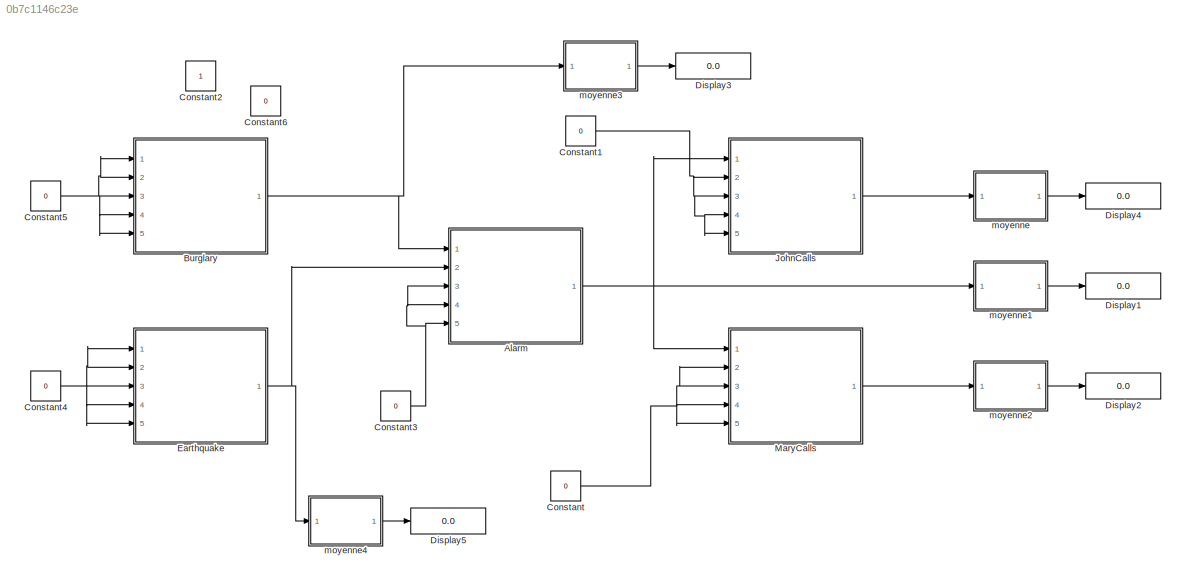
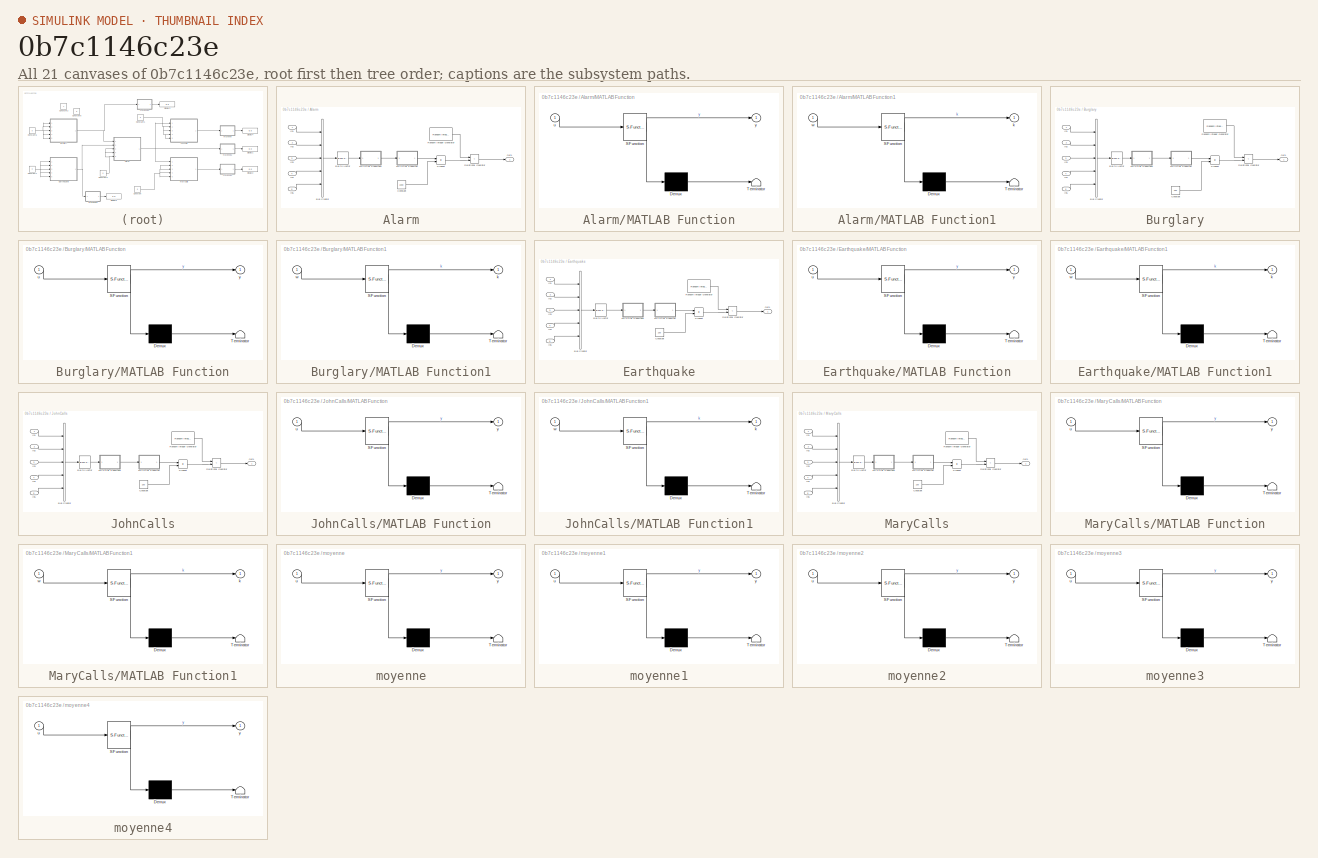
[diagram: thumbnail index - all 21 canvases of the model, root first then tree order]
MODEL slx_0b7c1146c23e
KIND model
CONFIG AbsTol = auto
CONFIG EnableMultiTasking = off
CONFIG FixedStep = auto
CONFIG MaxStep = auto
CONFIG MinStep = auto
CONFIG RelTol = 1e-3
CONFIG SampleTimeConstraint = Unconstrained
CONFIG Solver = VariableStepAuto
CONFIG SolverName = VariableStepAuto
CONFIG StartTime = 0.0
CONFIG StopTime = 1
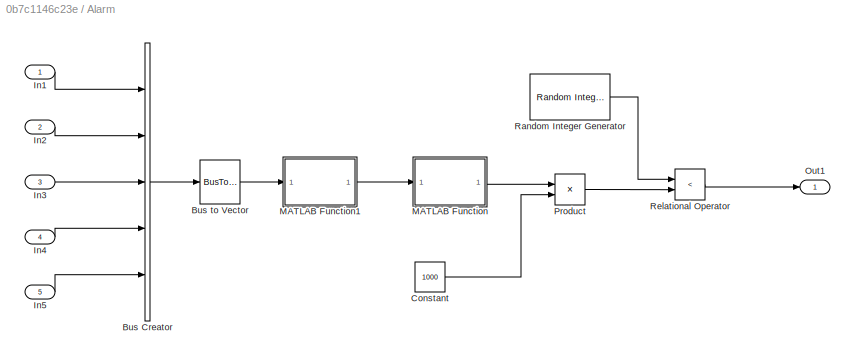
BLOCK [SubSystem] Alarm
  Ports = [5, 1]
  RequestExecContextInheritance = off
  Variant = off
BLOCK [BusCreator] Alarm/Bus Creator
  DisplayOption = bar
  InheritFromInputs = on
  Inputs = 5
  Ports = [5, 1]
BLOCK [BusToVector] Alarm/Bus to Vector
BLOCK [Constant] Alarm/Constant
  Value = 1000
BLOCK [Inport] Alarm/In1
  IconDisplay = Port number
  OutDataTypeStr = boolean
BLOCK [Inport] Alarm/In2
  IconDisplay = Port number
  OutDataTypeStr = boolean
  Port = 2
BLOCK [Inport] Alarm/In3
  IconDisplay = Port number
  OutDataTypeStr = boolean
  Port = 3
BLOCK [Inport] Alarm/In4
  IconDisplay = Port number
  OutDataTypeStr = boolean
  Port = 4
BLOCK [Inport] Alarm/In5
  IconDisplay = Port number
  OutDataTypeStr = boolean
  Port = 5
BLOCK [SubSystem] Alarm/MATLAB Function
  ErrorFcn = Stateflow.Translate.translate
  PermitHierarchicalResolution = ExplicitOnly
  Ports = [1, 1]
  RequestExecContextInheritance = off
  SFBlockType = MATLAB Function
  TreatAsAtomicUnit = on
  Variant = off
BLOCK [Demux] Alarm/MATLAB Function/ Demux 
  Outputs = 1
  Ports = [1, 1]
BLOCK [S-Function] Alarm/MATLAB Function/ SFunction 
  EnableBusSupport = on
  FunctionName = sf_sfun
  PortCounts = [1 2]
  Ports = [1, 2]
  SFcnIsStateOwnerBlock = off
  SFunctionDeploymentMode = off
  Tag = Stateflow S-Function reseau_alarm 2
BLOCK [Terminator] Alarm/MATLAB Function/ Terminator 
BLOCK [Inport] Alarm/MATLAB Function/u
  IconDisplay = Port number
BLOCK [Outport] Alarm/MATLAB Function/y
  IconDisplay = Port number
BLOCK [SubSystem] Alarm/MATLAB Function1
  ErrorFcn = Stateflow.Translate.translate
  PermitHierarchicalResolution = ExplicitOnly
  Ports = [1, 1]
  RequestExecContextInheritance = off
  SFBlockType = MATLAB Function
  TreatAsAtomicUnit = on
  Variant = off
BLOCK [Demux] Alarm/MATLAB Function1/ Demux 
  Outputs = 1
  Ports = [1, 1]
BLOCK [S-Function] Alarm/MATLAB Function1/ SFunction 
  EnableBusSupport = on
  FunctionName = sf_sfun
  PortCounts = [1 2]
  Ports = [1, 2]
  SFcnIsStateOwnerBlock = off
  SFunctionDeploymentMode = off
  Tag = Stateflow S-Function reseau_alarm 3
BLOCK [Terminator] Alarm/MATLAB Function1/ Terminator 
BLOCK [Outport] Alarm/MATLAB Function1/k
  IconDisplay = Port number
BLOCK [Inport] Alarm/MATLAB Function1/w
  IconDisplay = Port number
BLOCK [Outport] Alarm/Out1
  IconDisplay = Port number
BLOCK [Product] Alarm/Product
  InputSameDT = off
  OutDataTypeStr = Inherit: Inherit via internal rule
  Ports = [2, 1]
  RndMeth = Floor
  SaturateOnIntegerOverflow = off
BLOCK [Reference] Alarm/Random Integer Generator  REF=commrandsrc3/Random Integer
Generator
  Ports = [0, 1]
  SourceBlock = commrandsrc3/Random Integer\nGenerator
  SourceProductBaseCode = CM
  SourceProductName = Communications System Toolbox
  SourceType = Random Integer Generator
BLOCK [RelationalOperator] Alarm/Relational Operator
  InputSameDT = off
  Operator = <
  OutDataTypeStr = boolean
  Ports = [2, 1]
  RndMeth = Simplest
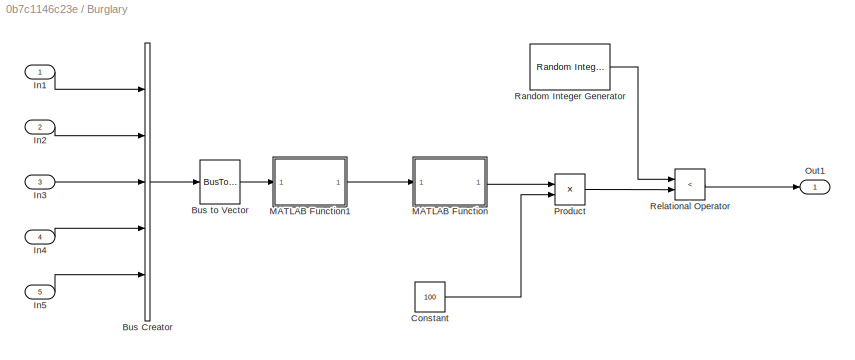
BLOCK [SubSystem] Burglary
  Ports = [5, 1]
  RequestExecContextInheritance = off
  Variant = off
BLOCK [BusCreator] Burglary/Bus Creator
  DisplayOption = bar
  InheritFromInputs = on
  Inputs = 5
  Ports = [5, 1]
BLOCK [BusToVector] Burglary/Bus to Vector
BLOCK [Constant] Burglary/Constant
  Value = 100
BLOCK [Inport] Burglary/In1
  IconDisplay = Port number
  OutDataTypeStr = boolean
BLOCK [Inport] Burglary/In2
  IconDisplay = Port number
  OutDataTypeStr = boolean
  Port = 2
BLOCK [Inport] Burglary/In3
  IconDisplay = Port number
  OutDataTypeStr = boolean
  Port = 3
BLOCK [Inport] Burglary/In4
  IconDisplay = Port number
  OutDataTypeStr = boolean
  Port = 4
BLOCK [Inport] Burglary/In5
  IconDisplay = Port number
  OutDataTypeStr = boolean
  Port = 5
BLOCK [SubSystem] Burglary/MATLAB Function
  ErrorFcn = Stateflow.Translate.translate
  PermitHierarchicalResolution = ExplicitOnly
  Ports = [1, 1]
  RequestExecContextInheritance = off
  SFBlockType = MATLAB Function
  TreatAsAtomicUnit = on
  Variant = off
BLOCK [Demux] Burglary/MATLAB Function/ Demux 
  Outputs = 1
  Ports = [1, 1]
BLOCK [S-Function] Burglary/MATLAB Function/ SFunction 
  EnableBusSupport = on
  FunctionName = sf_sfun
  PortCounts = [1 2]
  Ports = [1, 2]
  SFcnIsStateOwnerBlock = off
  SFunctionDeploymentMode = off
  Tag = Stateflow S-Function reseau_alarm 4
BLOCK [Terminator] Burglary/MATLAB Function/ Terminator 
BLOCK [Inport] Burglary/MATLAB Function/u
  IconDisplay = Port number
BLOCK [Outport] Burglary/MATLAB Function/y
  IconDisplay = Port number
BLOCK [SubSystem] Burglary/MATLAB Function1
  ErrorFcn = Stateflow.Translate.translate
  PermitHierarchicalResolution = ExplicitOnly
  Ports = [1, 1]
  RequestExecContextInheritance = off
  SFBlockType = MATLAB Function
  TreatAsAtomicUnit = on
  Variant = off
BLOCK [Demux] Burglary/MATLAB Function1/ Demux 
  Outputs = 1
  Ports = [1, 1]
BLOCK [S-Function] Burglary/MATLAB Function1/ SFunction 
  EnableBusSupport = on
  FunctionName = sf_sfun
  PortCounts = [1 2]
  Ports = [1, 2]
  SFcnIsStateOwnerBlock = off
  SFunctionDeploymentMode = off
  Tag = Stateflow S-Function reseau_alarm 5
BLOCK [Terminator] Burglary/MATLAB Function1/ Terminator 
BLOCK [Outport] Burglary/MATLAB Function1/k
  IconDisplay = Port number
BLOCK [Inport] Burglary/MATLAB Function1/w
  IconDisplay = Port number
BLOCK [Outport] Burglary/Out1
  IconDisplay = Port number
BLOCK [Product] Burglary/Product
  InputSameDT = off
  OutDataTypeStr = Inherit: Inherit via internal rule
  Ports = [2, 1]
  RndMeth = Floor
  SaturateOnIntegerOverflow = off
BLOCK [Reference] Burglary/Random Integer Generator  REF=commrandsrc3/Random Integer
Generator
  Ports = [0, 1]
  SourceBlock = commrandsrc3/Random Integer\nGenerator
  SourceProductBaseCode = CM
  SourceProductName = Communications System Toolbox
  SourceType = Random Integer Generator
BLOCK [RelationalOperator] Burglary/Relational Operator
  InputSameDT = off
  Operator = <
  OutDataTypeStr = boolean
  Ports = [2, 1]
  RndMeth = Simplest
BLOCK [Constant] Constant
  OutDataTypeStr = boolean
  Value = 0
BLOCK [Constant] Constant1
  OutDataTypeStr = boolean
  Value = 0
BLOCK [Constant] Constant2
  OutDataTypeStr = boolean
BLOCK [Constant] Constant3
  OutDataTypeStr = boolean
  Value = 0
BLOCK [Constant] Constant4
  OutDataTypeStr = boolean
  Value = 0
BLOCK [Constant] Constant5
  OutDataTypeStr = boolean
  Value = 0
BLOCK [Constant] Constant6
  OutDataTypeStr = boolean
  Value = 0
BLOCK [Display] Display1
  Decimation = 1
  Ports = [1]
BLOCK [Display] Display2
  Decimation = 1
  Ports = [1]
BLOCK [Display] Display3
  Decimation = 1
  Ports = [1]
BLOCK [Display] Display4
  Decimation = 1
  Ports = [1]
BLOCK [Display] Display5
  Decimation = 1
  Ports = [1]
BLOCK [SubSystem] Earthquake
  Ports = [5, 1]
  RequestExecContextInheritance = off
  Variant = off
BLOCK [BusCreator] Earthquake/Bus Creator
  DisplayOption = bar
  InheritFromInputs = on
  Inputs = 5
  Ports = [5, 1]
BLOCK [BusToVector] Earthquake/Bus to Vector
BLOCK [Constant] Earthquake/Constant
  Value = 100
BLOCK [Inport] Earthquake/In1
  IconDisplay = Port number
  OutDataTypeStr = boolean
BLOCK [Inport] Earthquake/In2
  IconDisplay = Port number
  OutDataTypeStr = boolean
  Port = 2
BLOCK [Inport] Earthquake/In3
  IconDisplay = Port number
  OutDataTypeStr = boolean
  Port = 3
BLOCK [Inport] Earthquake/In4
  IconDisplay = Port number
  OutDataTypeStr = boolean
  Port = 4
BLOCK [Inport] Earthquake/In5
  IconDisplay = Port number
  OutDataTypeStr = boolean
  Port = 5
BLOCK [SubSystem] Earthquake/MATLAB Function
  ErrorFcn = Stateflow.Translate.translate
  PermitHierarchicalResolution = ExplicitOnly
  Ports = [1, 1]
  RequestExecContextInheritance = off
  SFBlockType = MATLAB Function
  TreatAsAtomicUnit = on
  Variant = off
BLOCK [Demux] Earthquake/MATLAB Function/ Demux 
  Outputs = 1
  Ports = [1, 1]
BLOCK [S-Function] Earthquake/MATLAB Function/ SFunction 
  EnableBusSupport = on
  FunctionName = sf_sfun
  PortCounts = [1 2]
  Ports = [1, 2]
  SFcnIsStateOwnerBlock = off
  SFunctionDeploymentMode = off
  Tag = Stateflow S-Function reseau_alarm 6
BLOCK [Terminator] Earthquake/MATLAB Function/ Terminator 
BLOCK [Inport] Earthquake/MATLAB Function/u
  IconDisplay = Port number
BLOCK [Outport] Earthquake/MATLAB Function/y
  IconDisplay = Port number
BLOCK [SubSystem] Earthquake/MATLAB Function1
  ErrorFcn = Stateflow.Translate.translate
  PermitHierarchicalResolution = ExplicitOnly
  Ports = [1, 1]
  RequestExecContextInheritance = off
  SFBlockType = MATLAB Function
  TreatAsAtomicUnit = on
  Variant = off
BLOCK [Demux] Earthquake/MATLAB Function1/ Demux 
  Outputs = 1
  Ports = [1, 1]
BLOCK [S-Function] Earthquake/MATLAB Function1/ SFunction 
  EnableBusSupport = on
  FunctionName = sf_sfun
  PortCounts = [1 2]
  Ports = [1, 2]
  SFcnIsStateOwnerBlock = off
  SFunctionDeploymentMode = off
  Tag = Stateflow S-Function reseau_alarm 7
BLOCK [Terminator] Earthquake/MATLAB Function1/ Terminator 
BLOCK [Outport] Earthquake/MATLAB Function1/k
  IconDisplay = Port number
BLOCK [Inport] Earthquake/MATLAB Function1/w
  IconDisplay = Port number
BLOCK [Outport] Earthquake/Out1
  IconDisplay = Port number
BLOCK [Product] Earthquake/Product
  InputSameDT = off
  OutDataTypeStr = Inherit: Inherit via internal rule
  Ports = [2, 1]
  RndMeth = Floor
  SaturateOnIntegerOverflow = off
BLOCK [Reference] Earthquake/Random Integer Generator  REF=commrandsrc3/Random Integer
Generator
  Ports = [0, 1]
  SourceBlock = commrandsrc3/Random Integer\nGenerator
  SourceProductBaseCode = CM
  SourceProductName = Communications System Toolbox
  SourceType = Random Integer Generator
BLOCK [RelationalOperator] Earthquake/Relational Operator
  InputSameDT = off
  Operator = <
  OutDataTypeStr = boolean
  Ports = [2, 1]
  RndMeth = Simplest
BLOCK [SubSystem] JohnCalls
  Ports = [5, 1]
  RequestExecContextInheritance = off
  Variant = off
BLOCK [BusCreator] JohnCalls/Bus Creator
  DisplayOption = bar
  InheritFromInputs = on
  Inputs = 5
  Ports = [5, 1]
BLOCK [BusToVector] JohnCalls/Bus to Vector
BLOCK [Constant] JohnCalls/Constant
  Value = 100
BLOCK [Inport] JohnCalls/In1
  IconDisplay = Port number
  OutDataTypeStr = boolean
BLOCK [Inport] JohnCalls/In2
  IconDisplay = Port number
  OutDataTypeStr = boolean
  Port = 2
BLOCK [Inport] JohnCalls/In3
  IconDisplay = Port number
  OutDataTypeStr = boolean
  Port = 3
BLOCK [Inport] JohnCalls/In4
  IconDisplay = Port number
  OutDataTypeStr = boolean
  Port = 4
BLOCK [Inport] JohnCalls/In5
  IconDisplay = Port number
  OutDataTypeStr = boolean
  Port = 5
BLOCK [SubSystem] JohnCalls/MATLAB Function
  ErrorFcn = Stateflow.Translate.translate
  PermitHierarchicalResolution = ExplicitOnly
  Ports = [1, 1]
  RequestExecContextInheritance = off
  SFBlockType = MATLAB Function
  TreatAsAtomicUnit = on
  Variant = off
BLOCK [Demux] JohnCalls/MATLAB Function/ Demux 
  Outputs = 1
  Ports = [1, 1]
BLOCK [S-Function] JohnCalls/MATLAB Function/ SFunction 
  EnableBusSupport = on
  FunctionName = sf_sfun
  PortCounts = [1 2]
  Ports = [1, 2]
  SFcnIsStateOwnerBlock = off
  SFunctionDeploymentMode = off
  Tag = Stateflow S-Function reseau_alarm 8
BLOCK [Terminator] JohnCalls/MATLAB Function/ Terminator 
BLOCK [Inport] JohnCalls/MATLAB Function/u
  IconDisplay = Port number
BLOCK [Outport] JohnCalls/MATLAB Function/y
  IconDisplay = Port number
BLOCK [SubSystem] JohnCalls/MATLAB Function1
  ErrorFcn = Stateflow.Translate.translate
  PermitHierarchicalResolution = ExplicitOnly
  Ports = [1, 1]
  RequestExecContextInheritance = off
  SFBlockType = MATLAB Function
  TreatAsAtomicUnit = on
  Variant = off
BLOCK [Demux] JohnCalls/MATLAB Function1/ Demux 
  Outputs = 1
  Ports = [1, 1]
BLOCK [S-Function] JohnCalls/MATLAB Function1/ SFunction 
  EnableBusSupport = on
  FunctionName = sf_sfun
  PortCounts = [1 2]
  Ports = [1, 2]
  SFcnIsStateOwnerBlock = off
  SFunctionDeploymentMode = off
  Tag = Stateflow S-Function reseau_alarm 9
BLOCK [Terminator] JohnCalls/MATLAB Function1/ Terminator 
BLOCK [Outport] JohnCalls/MATLAB Function1/k
  IconDisplay = Port number
BLOCK [Inport] JohnCalls/MATLAB Function1/w
  IconDisplay = Port number
BLOCK [Outport] JohnCalls/Out1
  IconDisplay = Port number
BLOCK [Product] JohnCalls/Product
  InputSameDT = off
  OutDataTypeStr = Inherit: Inherit via internal rule
  Ports = [2, 1]
  RndMeth = Floor
  SaturateOnIntegerOverflow = off
BLOCK [Reference] JohnCalls/Random Integer Generator  REF=commrandsrc3/Random Integer
Generator
  Ports = [0, 1]
  SourceBlock = commrandsrc3/Random Integer\nGenerator
  SourceProductBaseCode = CM
  SourceProductName = Communications System Toolbox
  SourceType = Random Integer Generator
BLOCK [RelationalOperator] JohnCalls/Relational Operator
  InputSameDT = off
  Operator = <
  OutDataTypeStr = boolean
  Ports = [2, 1]
  RndMeth = Simplest
BLOCK [SubSystem] MaryCalls
  Ports = [5, 1]
  RequestExecContextInheritance = off
  Variant = off
BLOCK [BusCreator] MaryCalls/Bus Creator
  DisplayOption = bar
  InheritFromInputs = on
  Inputs = 5
  Ports = [5, 1]
BLOCK [BusToVector] MaryCalls/Bus to Vector
BLOCK [Constant] MaryCalls/Constant
  Value = 100
BLOCK [Inport] MaryCalls/In1
  IconDisplay = Port number
  OutDataTypeStr = boolean
BLOCK [Inport] MaryCalls/In2
  IconDisplay = Port number
  OutDataTypeStr = boolean
  Port = 2
BLOCK [Inport] MaryCalls/In3
  IconDisplay = Port number
  OutDataTypeStr = boolean
  Port = 3
BLOCK [Inport] MaryCalls/In4
  IconDisplay = Port number
  OutDataTypeStr = boolean
  Port = 4
BLOCK [Inport] MaryCalls/In5
  IconDisplay = Port number
  OutDataTypeStr = boolean
  Port = 5
BLOCK [SubSystem] MaryCalls/MATLAB Function
  ErrorFcn = Stateflow.Translate.translate
  PermitHierarchicalResolution = ExplicitOnly
  Ports = [1, 1]
  RequestExecContextInheritance = off
  SFBlockType = MATLAB Function
  TreatAsAtomicUnit = on
  Variant = off
BLOCK [Demux] MaryCalls/MATLAB Function/ Demux 
  Outputs = 1
  Ports = [1, 1]
BLOCK [S-Function] MaryCalls/MATLAB Function/ SFunction 
  EnableBusSupport = on
  FunctionName = sf_sfun
  PortCounts = [1 2]
  Ports = [1, 2]
  SFcnIsStateOwnerBlock = off
  SFunctionDeploymentMode = off
  Tag = Stateflow S-Function reseau_alarm 10
BLOCK [Terminator] MaryCalls/MATLAB Function/ Terminator 
BLOCK [Inport] MaryCalls/MATLAB Function/u
  IconDisplay = Port number
BLOCK [Outport] MaryCalls/MATLAB Function/y
  IconDisplay = Port number
BLOCK [SubSystem] MaryCalls/MATLAB Function1
  ErrorFcn = Stateflow.Translate.translate
  PermitHierarchicalResolution = ExplicitOnly
  Ports = [1, 1]
  RequestExecContextInheritance = off
  SFBlockType = MATLAB Function
  TreatAsAtomicUnit = on
  Variant = off
BLOCK [Demux] MaryCalls/MATLAB Function1/ Demux 
  Outputs = 1
  Ports = [1, 1]
BLOCK [S-Function] MaryCalls/MATLAB Function1/ SFunction 
  EnableBusSupport = on
  FunctionName = sf_sfun
  PortCounts = [1 2]
  Ports = [1, 2]
  SFcnIsStateOwnerBlock = off
  SFunctionDeploymentMode = off
  Tag = Stateflow S-Function reseau_alarm 11
BLOCK [Terminator] MaryCalls/MATLAB Function1/ Terminator 
BLOCK [Outport] MaryCalls/MATLAB Function1/k
  IconDisplay = Port number
BLOCK [Inport] MaryCalls/MATLAB Function1/w
  IconDisplay = Port number
BLOCK [Outport] MaryCalls/Out1
  IconDisplay = Port number
BLOCK [Product] MaryCalls/Product
  InputSameDT = off
  OutDataTypeStr = Inherit: Inherit via internal rule
  Ports = [2, 1]
  RndMeth = Floor
  SaturateOnIntegerOverflow = off
BLOCK [Reference] MaryCalls/Random Integer Generator  REF=commrandsrc3/Random Integer
Generator
  Ports = [0, 1]
  SourceBlock = commrandsrc3/Random Integer\nGenerator
  SourceProductBaseCode = CM
  SourceProductName = Communications System Toolbox
  SourceType = Random Integer Generator
BLOCK [RelationalOperator] MaryCalls/Relational Operator
  InputSameDT = off
  Operator = <
  OutDataTypeStr = boolean
  Ports = [2, 1]
  RndMeth = Simplest
BLOCK [SubSystem] moyenne
  ErrorFcn = Stateflow.Translate.translate
  PermitHierarchicalResolution = ExplicitOnly
  Ports = [1, 1]
  RequestExecContextInheritance = off
  SFBlockType = MATLAB Function
  TreatAsAtomicUnit = on
  Variant = off
BLOCK [Demux] moyenne/ Demux 
  Outputs = 1
  Ports = [1, 1]
BLOCK [S-Function] moyenne/ SFunction 
  EnableBusSupport = on
  FunctionName = sf_sfun
  PortCounts = [1 2]
  Ports = [1, 2]
  SFcnIsStateOwnerBlock = off
  SFunctionDeploymentMode = off
  Tag = Stateflow S-Function reseau_alarm 1
BLOCK [Terminator] moyenne/ Terminator 
BLOCK [Inport] moyenne/u
  IconDisplay = Port number
BLOCK [Outport] moyenne/y
  IconDisplay = Port number
BLOCK [SubSystem] moyenne1
  ErrorFcn = Stateflow.Translate.translate
  PermitHierarchicalResolution = ExplicitOnly
  Ports = [1, 1]
  RequestExecContextInheritance = off
  SFBlockType = MATLAB Function
  TreatAsAtomicUnit = on
  Variant = off
BLOCK [Demux] moyenne1/ Demux 
  Outputs = 1
  Ports = [1, 1]
BLOCK [S-Function] moyenne1/ SFunction 
  EnableBusSupport = on
  FunctionName = sf_sfun
  PortCounts = [1 2]
  Ports = [1, 2]
  SFcnIsStateOwnerBlock = off
  SFunctionDeploymentMode = off
  Tag = Stateflow S-Function reseau_alarm 12
BLOCK [Terminator] moyenne1/ Terminator 
BLOCK [Inport] moyenne1/u
  IconDisplay = Port number
BLOCK [Outport] moyenne1/y
  IconDisplay = Port number
BLOCK [SubSystem] moyenne2
  ErrorFcn = Stateflow.Translate.translate
  PermitHierarchicalResolution = ExplicitOnly
  Ports = [1, 1]
  RequestExecContextInheritance = off
  SFBlockType = MATLAB Function
  TreatAsAtomicUnit = on
  Variant = off
BLOCK [Demux] moyenne2/ Demux 
  Outputs = 1
  Ports = [1, 1]
BLOCK [S-Function] moyenne2/ SFunction 
  EnableBusSupport = on
  FunctionName = sf_sfun
  PortCounts = [1 2]
  Ports = [1, 2]
  SFcnIsStateOwnerBlock = off
  SFunctionDeploymentMode = off
  Tag = Stateflow S-Function reseau_alarm 13
BLOCK [Terminator] moyenne2/ Terminator 
BLOCK [Inport] moyenne2/u
  IconDisplay = Port number
BLOCK [Outport] moyenne2/y
  IconDisplay = Port number
BLOCK [SubSystem] moyenne3
  ErrorFcn = Stateflow.Translate.translate
  PermitHierarchicalResolution = ExplicitOnly
  Ports = [1, 1]
  RequestExecContextInheritance = off
  SFBlockType = MATLAB Function
  TreatAsAtomicUnit = on
  Variant = off
BLOCK [Demux] moyenne3/ Demux 
  Outputs = 1
  Ports = [1, 1]
BLOCK [S-Function] moyenne3/ SFunction 
  EnableBusSupport = on
  FunctionName = sf_sfun
  PortCounts = [1 2]
  Ports = [1, 2]
  SFcnIsStateOwnerBlock = off
  SFunctionDeploymentMode = off
  Tag = Stateflow S-Function reseau_alarm 14
BLOCK [Terminator] moyenne3/ Terminator 
BLOCK [Inport] moyenne3/u
  IconDisplay = Port number
BLOCK [Outport] moyenne3/y
  IconDisplay = Port number
BLOCK [SubSystem] moyenne4
  ErrorFcn = Stateflow.Translate.translate
  PermitHierarchicalResolution = ExplicitOnly
  Ports = [1, 1]
  RequestExecContextInheritance = off
  SFBlockType = MATLAB Function
  TreatAsAtomicUnit = on
  Variant = off
BLOCK [Demux] moyenne4/ Demux 
  Outputs = 1
  Ports = [1, 1]
BLOCK [S-Function] moyenne4/ SFunction 
  EnableBusSupport = on
  FunctionName = sf_sfun
  PortCounts = [1 2]
  Ports = [1, 2]
  SFcnIsStateOwnerBlock = off
  SFunctionDeploymentMode = off
  Tag = Stateflow S-Function reseau_alarm 15
BLOCK [Terminator] moyenne4/ Terminator 
BLOCK [Inport] moyenne4/u
  IconDisplay = Port number
BLOCK [Outport] moyenne4/y
  IconDisplay = Port number
LINE Alarm/Bus Creator:1 -> Alarm/Bus to Vector:1
LINE Alarm/Bus to Vector:1 -> Alarm/MATLAB Function1:1
LINE Alarm/Constant:1 -> Alarm/Product:2
LINE Alarm/In1:1 -> Alarm/Bus Creator:1
LINE Alarm/In2:1 -> Alarm/Bus Creator:2
LINE Alarm/In3:1 -> Alarm/Bus Creator:3
LINE Alarm/In4:1 -> Alarm/Bus Creator:4
LINE Alarm/In5:1 -> Alarm/Bus Creator:5
LINE Alarm/MATLAB Function1:1 -> Alarm/MATLAB Function:1
LINE Alarm/MATLAB Function:1 -> Alarm/Product:1
LINE Alarm/Product:1 -> Alarm/Relational Operator:2
LINE Alarm/Random Integer Generator:1 -> Alarm/Relational Operator:1
LINE Alarm/Relational Operator:1 -> Alarm/Out1:1
NET Alarm:1 -> JohnCalls:1, MaryCalls:1, moyenne1:1
LINE Burglary/Bus Creator:1 -> Burglary/Bus to Vector:1
LINE Burglary/Bus to Vector:1 -> Burglary/MATLAB Function1:1
LINE Burglary/Constant:1 -> Burglary/Product:2
LINE Burglary/In1:1 -> Burglary/Bus Creator:1
LINE Burglary/In2:1 -> Burglary/Bus Creator:2
LINE Burglary/In3:1 -> Burglary/Bus Creator:3
LINE Burglary/In4:1 -> Burglary/Bus Creator:4
LINE Burglary/In5:1 -> Burglary/Bus Creator:5
LINE Burglary/MATLAB Function1:1 -> Burglary/MATLAB Function:1
LINE Burglary/MATLAB Function:1 -> Burglary/Product:1
LINE Burglary/Product:1 -> Burglary/Relational Operator:2
LINE Burglary/Random Integer Generator:1 -> Burglary/Relational Operator:1
LINE Burglary/Relational Operator:1 -> Burglary/Out1:1
NET Burglary:1 -> Alarm:1, moyenne3:1
NET Constant1:1 -> JohnCalls:2, JohnCalls:3, JohnCalls:4, JohnCalls:5
NET Constant3:1 -> Alarm:3, Alarm:4, Alarm:5
NET Constant4:1 -> Earthquake:1, Earthquake:2, Earthquake:3, Earthquake:4, Earthquake:5
NET Constant5:1 -> Burglary:1, Burglary:2, Burglary:3, Burglary:4, Burglary:5
NET Constant:1 -> MaryCalls:2, MaryCalls:3, MaryCalls:4, MaryCalls:5
LINE Earthquake/Bus Creator:1 -> Earthquake/Bus to Vector:1
LINE Earthquake/Bus to Vector:1 -> Earthquake/MATLAB Function1:1
LINE Earthquake/Constant:1 -> Earthquake/Product:2
LINE Earthquake/In1:1 -> Earthquake/Bus Creator:1
LINE Earthquake/In2:1 -> Earthquake/Bus Creator:2
LINE Earthquake/In3:1 -> Earthquake/Bus Creator:3
LINE Earthquake/In4:1 -> Earthquake/Bus Creator:4
LINE Earthquake/In5:1 -> Earthquake/Bus Creator:5
LINE Earthquake/MATLAB Function1:1 -> Earthquake/MATLAB Function:1
LINE Earthquake/MATLAB Function:1 -> Earthquake/Product:1
LINE Earthquake/Product:1 -> Earthquake/Relational Operator:2
LINE Earthquake/Random Integer Generator:1 -> Earthquake/Relational Operator:1
LINE Earthquake/Relational Operator:1 -> Earthquake/Out1:1
NET Earthquake:1 -> Alarm:2, moyenne4:1
LINE JohnCalls/Bus Creator:1 -> JohnCalls/Bus to Vector:1
LINE JohnCalls/Bus to Vector:1 -> JohnCalls/MATLAB Function1:1
LINE JohnCalls/Constant:1 -> JohnCalls/Product:2
LINE JohnCalls/In1:1 -> JohnCalls/Bus Creator:1
LINE JohnCalls/In2:1 -> JohnCalls/Bus Creator:2
LINE JohnCalls/In3:1 -> JohnCalls/Bus Creator:3
LINE JohnCalls/In4:1 -> JohnCalls/Bus Creator:4
LINE JohnCalls/In5:1 -> JohnCalls/Bus Creator:5
LINE JohnCalls/MATLAB Function1:1 -> JohnCalls/MATLAB Function:1
LINE JohnCalls/MATLAB Function:1 -> JohnCalls/Product:1
LINE JohnCalls/Product:1 -> JohnCalls/Relational Operator:2
LINE JohnCalls/Random Integer Generator:1 -> JohnCalls/Relational Operator:1
LINE JohnCalls/Relational Operator:1 -> JohnCalls/Out1:1
LINE JohnCalls:1 -> moyenne:1
LINE MaryCalls/Bus Creator:1 -> MaryCalls/Bus to Vector:1
LINE MaryCalls/Bus to Vector:1 -> MaryCalls/MATLAB Function1:1
LINE MaryCalls/Constant:1 -> MaryCalls/Product:2
LINE MaryCalls/In1:1 -> MaryCalls/Bus Creator:1
LINE MaryCalls/In2:1 -> MaryCalls/Bus Creator:2
LINE MaryCalls/In3:1 -> MaryCalls/Bus Creator:3
LINE MaryCalls/In4:1 -> MaryCalls/Bus Creator:4
LINE MaryCalls/In5:1 -> MaryCalls/Bus Creator:5
LINE MaryCalls/MATLAB Function1:1 -> MaryCalls/MATLAB Function:1
LINE MaryCalls/MATLAB Function:1 -> MaryCalls/Product:1
LINE MaryCalls/Product:1 -> MaryCalls/Relational Operator:2
LINE MaryCalls/Random Integer Generator:1 -> MaryCalls/Relational Operator:1
LINE MaryCalls/Relational Operator:1 -> MaryCalls/Out1:1
LINE MaryCalls:1 -> moyenne2:1
LINE moyenne1:1 -> Display1:1
LINE moyenne2:1 -> Display2:1
LINE moyenne3:1 -> Display3:1
LINE moyenne4:1 -> Display5:1
LINE moyenne:1 -> Display4:1
note: NET lines group one-source signal fan-out (src -> all destinations, sorted); 1:1 wires keep LINE
CHART moyenne states=1 transitions=1
  STATE_LABEL 'eML_blk_kernel()'
  STATE_LABEL 'SCRIPT:\nfunction y = fcn(u)\npersistent nb_one total\nif isempty(nb_one)\n    nb_one=0;\nend\nif isempty(total)\n    total=0;\nend\nif u==1\n    nb_one = nb_one+1;\nend\ntotal = total +1;\n\ny=nb_one/total;\n'  <repeated x5 — deduplicated; at blocks: moyenne, moyenne1, moyenne2, moyenne3, moyenne4>
CHART Alarm/MATLAB Function states=1 transitions=1
  STATE_LABEL 'eML_blk_kernel()'
  STATE_LABEL 'SCRIPT:\nfunction y = fcn(u)\n\nMEM =[0.001;0.94;0.29;0.95];\n\ny=MEM(u+1);\n\n\n       \n        \n'
CHART Alarm/MATLAB Function1 states=1 transitions=1
  STATE_LABEL 'eML_blk_kernel()'
  STATE_LABEL 'SCRIPT:\nfunction k = fcn(w)\nout =0;\n    if w(1)==1\n        out = out + 1;\n    end\n    if w(2)==1\n        out = out + 2;\n    end\n    if w(3)==1\n        out = out + 4;\n    end\n    if w(4)==1\n        out = out + 8;\n    end\n    if w(5)==1\n        out = out + 16;\n    end\nk=out;\n'  <repeated x5 — deduplicated; at blocks: MATLAB Function1>
CHART Burglary/MATLAB Function states=1 transitions=1
  STATE_LABEL 'eML_blk_kernel()'
  STATE_LABEL 'SCRIPT:\nfunction y = fcn(u)\n\nMEM =[0.01];\n\ny=MEM(u+1);\n\n\n       \n        \n'
CHART Burglary/MATLAB Function1 states=1 transitions=1
  STATE_LABEL 'eML_blk_kernel()'
CHART Earthquake/MATLAB Function states=1 transitions=1
  STATE_LABEL 'eML_blk_kernel()'
  STATE_LABEL 'SCRIPT:\nfunction y = fcn(u)\n\nMEM =[0.02];\n\ny=MEM(u+1);\n\n\n       \n        \n'
CHART Earthquake/MATLAB Function1 states=1 transitions=1
  STATE_LABEL 'eML_blk_kernel()'
CHART JohnCalls/MATLAB Function states=1 transitions=1
  STATE_LABEL 'eML_blk_kernel()'
  STATE_LABEL 'SCRIPT:\nfunction y = fcn(u)\n\nMEM =[0.05;0.9];\n\ny=MEM(u+1);\n\n\n       \n        \n'
CHART JohnCalls/MATLAB Function1 states=1 transitions=1
  STATE_LABEL 'eML_blk_kernel()'
CHART MaryCalls/MATLAB Function states=1 transitions=1
  STATE_LABEL 'eML_blk_kernel()'
  STATE_LABEL 'SCRIPT:\nfunction y = fcn(u)\n\nMEM =[0.01;0.7];\n\ny=MEM(u+1);\n\n\n       \n        \n'
CHART MaryCalls/MATLAB Function1 states=1 transitions=1
  STATE_LABEL 'eML_blk_kernel()'
CHART moyenne1 states=1 transitions=1
  STATE_LABEL 'eML_blk_kernel()'
CHART moyenne2 states=1 transitions=1
  STATE_LABEL 'eML_blk_kernel()'
CHART moyenne3 states=1 transitions=1
  STATE_LABEL 'eML_blk_kernel()'
CHART moyenne4 states=1 transitions=1
  STATE_LABEL 'eML_blk_kernel()'
